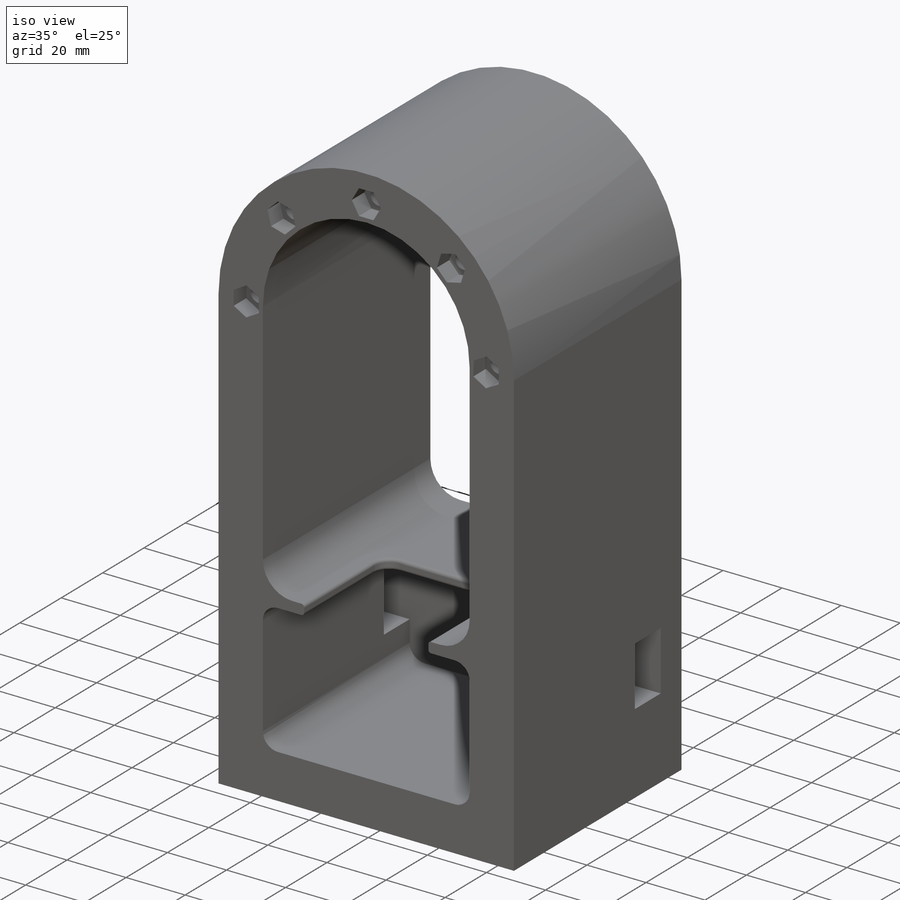
[diagram: iso view]
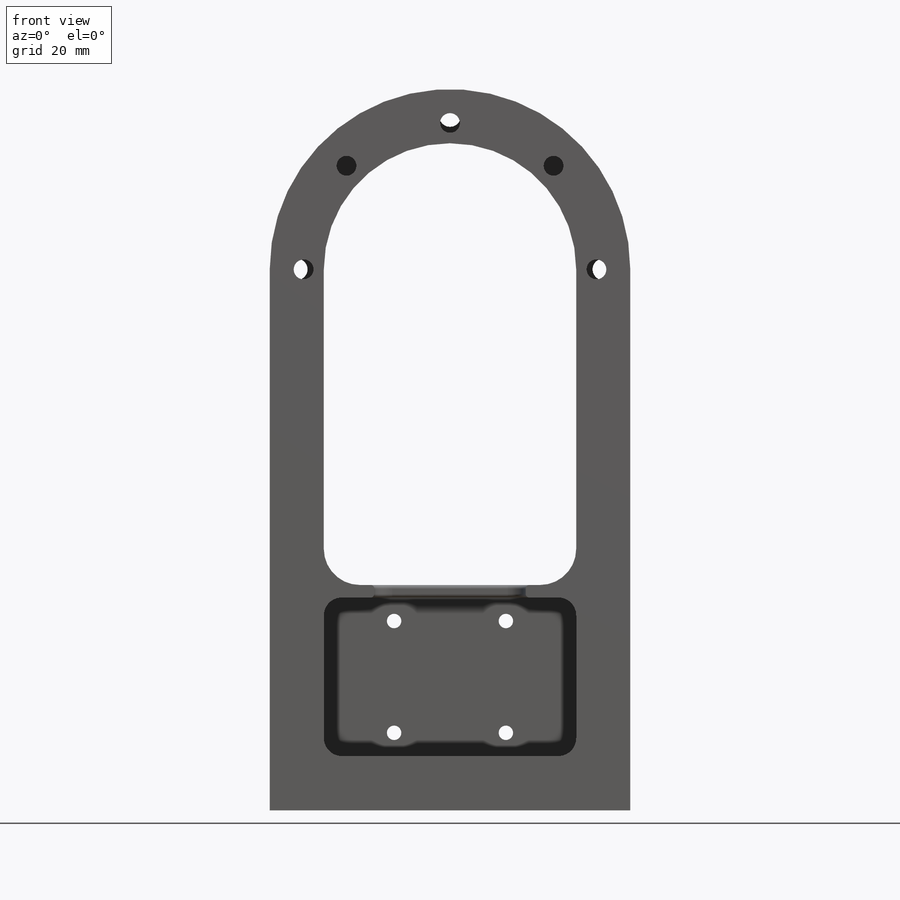
[diagram: front view]
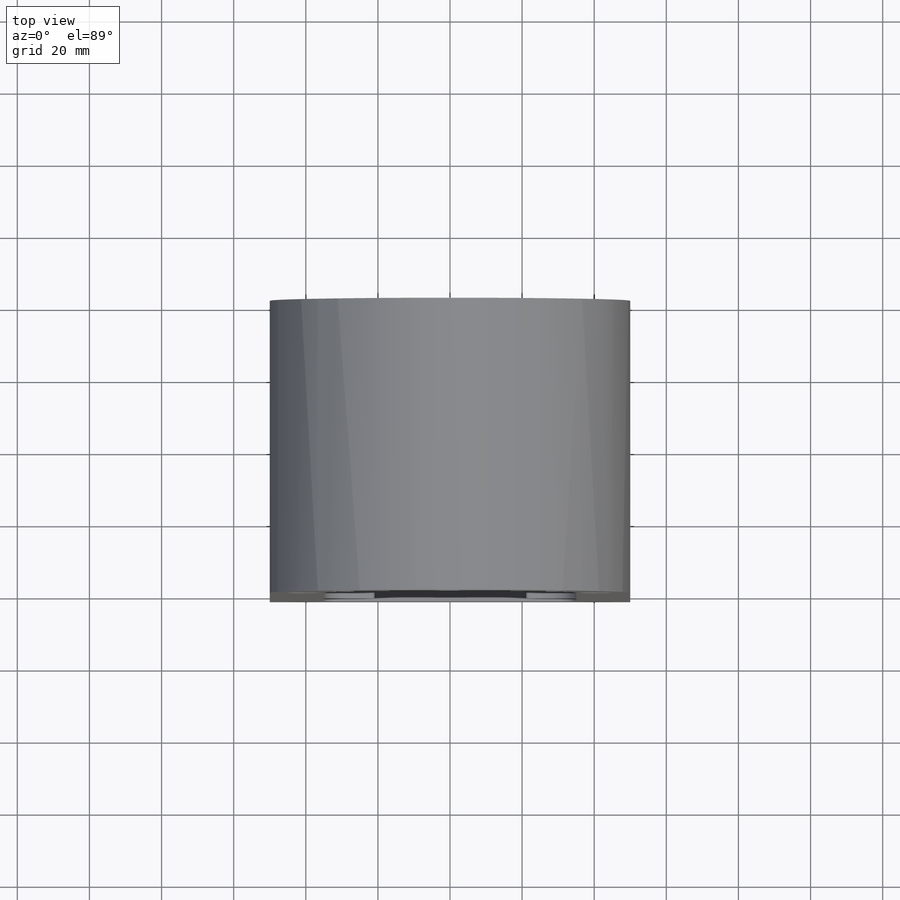
[diagram: top view]
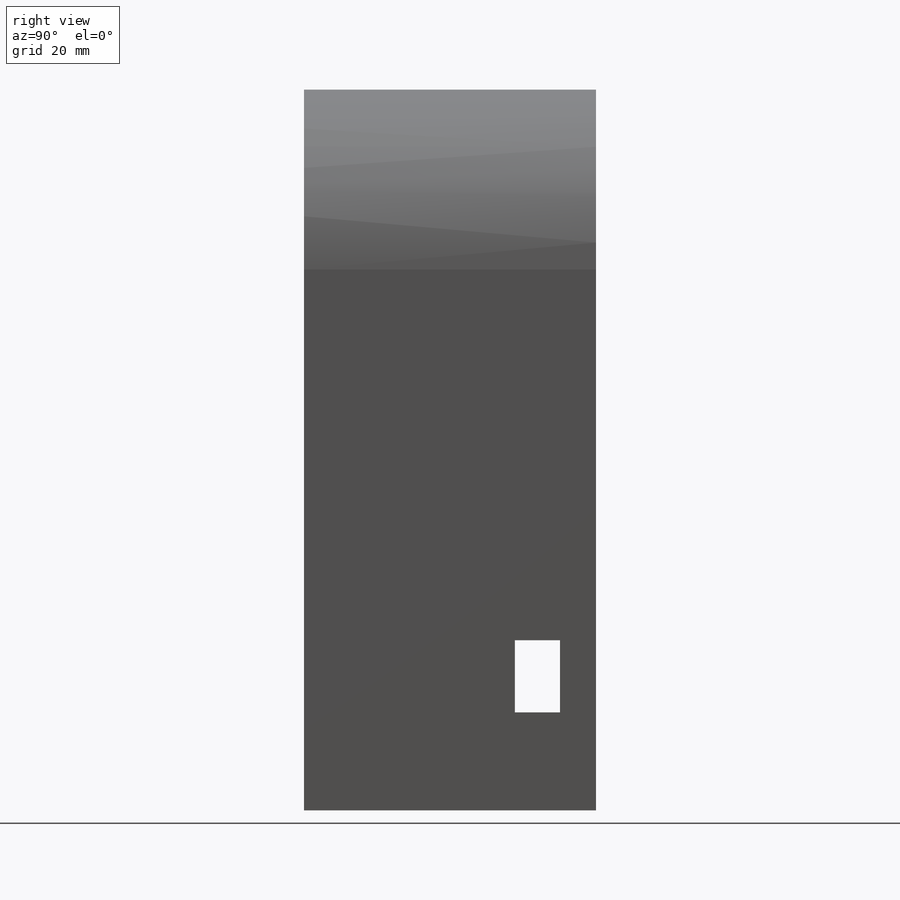
[diagram: right view]
SOLIDWORKS PART (.sldprt)
format: sldprt  version: not decoded by parser v0  size: 499,200 bytes
history: native  units: mm
features: sketch x10, cut_extrude x9, plane x3, material x1, extrude x1, fillet x1 (+9 scaffold rows collapsed)
feature tree (34):
  scaffold x9  (default folders/planes/origin — collapsed)
  material  "Material <sin especificar>"
  plane  "Alzado"
  plane  "Planta"
  plane  "Vista lateral"
  sketch  "Croquis1"  dims[c1.D1=100.0mm c1.D3=10.0mm c1.D2=113.0mm c2.D3=31.0mm c2.D4=15.0mm]
  extrude  "Saliente-Extruir1"  Depth=81mm
  sketch  "Croquis2"  dims[D1=8.5mm D2=8.5mm D3=8.5mm D4=8.5mm D5=8.5mm D6=8.5mm D7=8.5mm D8=15.0mm]
  cut_extrude  "Cortar-Extruir1"  Depth=6mm
  sketch  "Croquis3"  dims[D3=4.0mm D1=113.0mm D2=31.0mm]
  cut_extrude  "Cortar-Extruir2"  [1 undecoded]
  sketch  "Croquis4"  dims[D1=8.0mm]
  cut_extrude  "Cortar-Extruir4"  Depth=6mm
  sketch  "Croquis6"  dims[c1.D4=5.0mm c1.D1=113.0mm c1.D2=44.0mm c1.D3=70.0mm c2.D4=100.0mm]
  cut_extrude  "Cortar-Extruir5"  Depth=71mm
  sketch  "Croquis7"  dims[D1=81.21mm D2=5.5mm D3=8.0]
  cut_extrude  "Cortar-Extruir6"  Depth=71mm
  sketch  "Croquis8"  dims[D1=8.5mm D2=8.5mm D3=8.5mm D4=8.5mm D5=8.5mm]
  cut_extrude  "Cortar-Extruir7"  Depth=6mm
  sketch  "Croquis9"  dims[D3=5.0mm D1=42.0mm D2=42.0mm]
  cut_extrude  "Cortar-Extruir8"  Depth=6mm
  fillet  "Redondeo2"  Radius=1mm
  sketch  "Croquis10"  dims[D1=6.0mm]
  cut_extrude  "Cortar-Extruir9"  Depth=71mm
  sketch  "Croquis15"  dims[c1.D1=10.0mm c1.D2=15.0mm c1.D3=20.0mm c2.D2=12.5mm c2.D1=10.0mm]
  cut_extrude  "Cortar-Extruir10"  [1 undecoded]
decode coverage: 19 of 21 modeling features carry decoded parameters
note: 2 parameter values undecoded
note: suppression state not decoded; provenance and decode notes live in map.json
